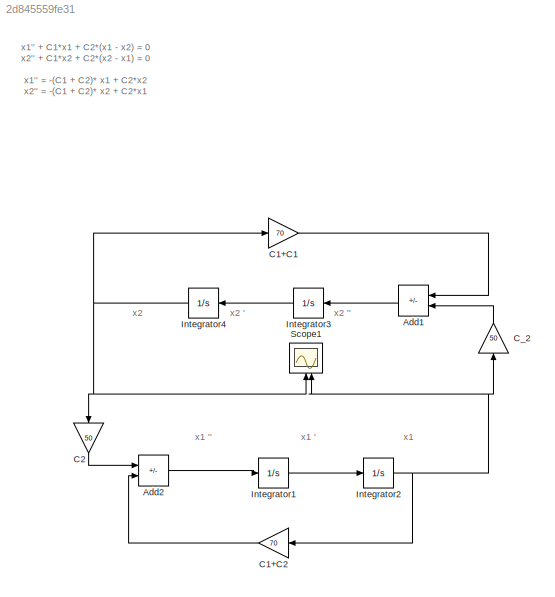
MODEL slx_2d845559fe31
KIND model
CONFIG AbsTol = auto
CONFIG EnableMultiTasking = off
CONFIG FixedStep = auto
CONFIG MaxStep = 1e-4
CONFIG MinStep = auto
CONFIG RelTol = 1e-3
CONFIG SampleTimeConstraint = Unconstrained
CONFIG SolverName = VariableStepAuto
CONFIG StartTime = 0.0
CONFIG StopTime = 12
BLOCK [Sum] Add1
  IconShape = rectangular
  Inputs = -+
  NameLocation = top
BLOCK [Sum] Add2
  IconShape = rectangular
  Inputs = +-
BLOCK [Gain] C1+C1
  Gain = 70
BLOCK [Gain] C1+C2
  Gain = 70
  NameLocation = top
BLOCK [Gain] C2
  Gain = 50
  NameLocation = left
BLOCK [Gain] C_2
  Gain = 50
  NameLocation = right
BLOCK [Integrator] Integrator1
BLOCK [Integrator] Integrator2
  InitialCondition = 0.5
BLOCK [Integrator] Integrator3
  NameLocation = top
BLOCK [Integrator] Integrator4
  NameLocation = top
BLOCK [Scope] Scope1
  Floating = off
  NameLocation = right
  NumInputPorts = 2
  ScopeSpecificationString = Simulink.scopes.TimeScopeBlockCfg('CurrentConfiguration', extmgr.ConfigurationSet(extmgr.Configuration('Core','General UI',true),extmgr.Configuration('Core','Source UI',true),extmgr.Configuration('Sources','WiredSimulink',true,'DataLoggingVariableName','ScopeData1'),extmgr.Configuration('Visuals','Time Domain',true,'SerializedDisplays',{struct('MinYLimReal','-0.62437','MaxYLimReal','0.62293','YLab...<+2077ch>
ANNOTATION (root): x1
ANNOTATION (root): x1 '
ANNOTATION (root): x1 ''
ANNOTATION (root): x1'' + C1*x1 + C2*(x1 - x2) = 0 x2'' + C1*x2 + C2*(x2 - x1) = 0 x1'' = -(C1 + C2)* x1 + C2*x2 x2'' = -(C1 + C2)* x2 + C2*x1
ANNOTATION (root): x2
ANNOTATION (root): x2 '
ANNOTATION (root): x2 ''
LINE Add1:1 -> Integrator3:1
LINE Add2:1 -> Integrator1:1
LINE C1+C1:1 -> Add1:1
LINE C1+C2:1 -> Add2:2
LINE C2:1 -> Add2:1
LINE C_2:1 -> Add1:2
LINE Integrator1:1 -> Integrator2:1
NET Integrator2:1 -> C1+C2:1, C_2:1, Scope1:2
LINE Integrator3:1 -> Integrator4:1
NET Integrator4:1 -> C1+C1:1, C2:1, Scope1:1
note: NET lines group one-source signal fan-out (src -> all destinations, sorted); 1:1 wires keep LINE
